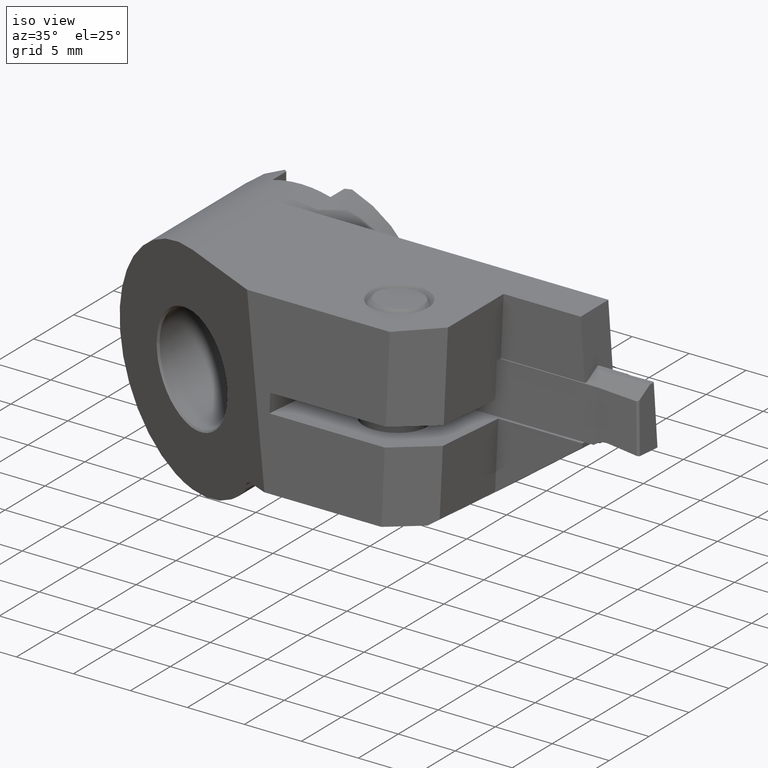
[diagram: clean part render]
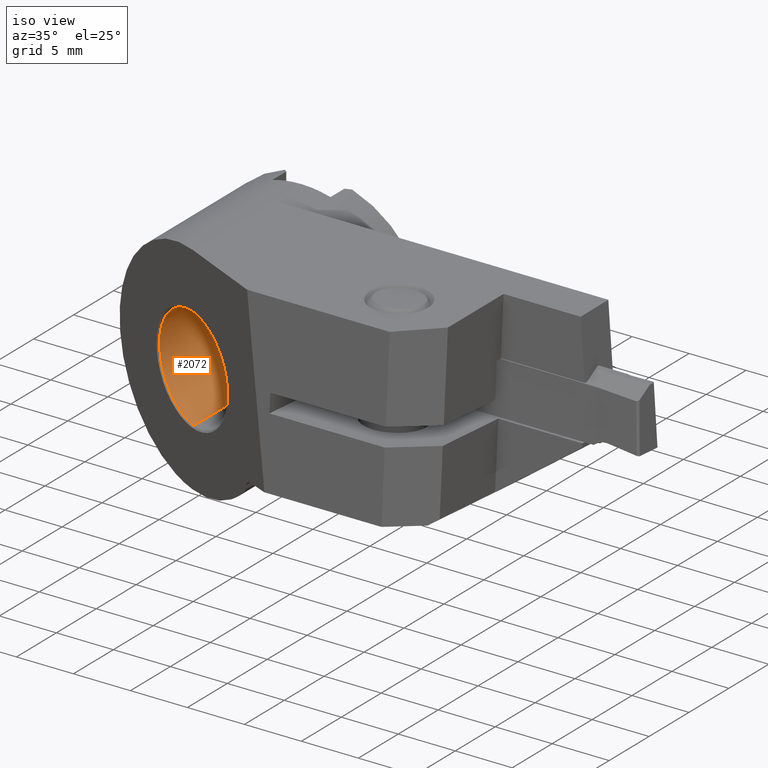
[diagram: same view with one face highlighted and labeled with its STEP entity id]
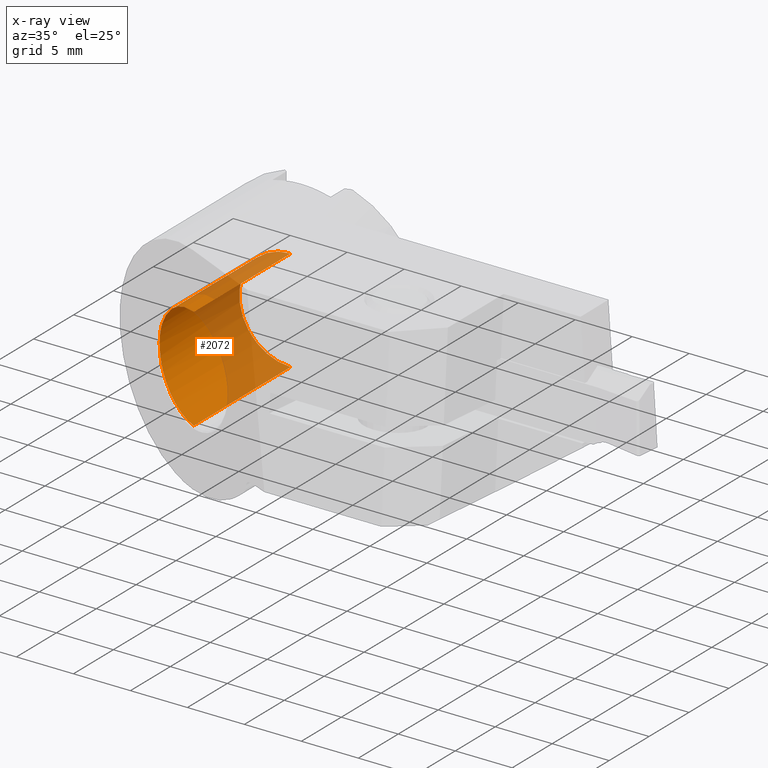
[diagram: x-ray of the same camera — body ghosted, the highlighted face saturated]
A machine part, iso view. The second image highlights one B-rep face of the part: STEP entity #2072.
The next image is the same camera in x-ray: the body ghosted, the highlighted face saturated — about 48% of this face is hidden behind the body in this view.
In plain terms, the highlighted cylindrical surface (partial cylindrical patch) has radius 4.5 mm, axis along (-0, 1, -0).
Its self-contained STEP definition (entity closure, byte-faithful):
#1112=VERTEX_POINT('NONE',#2562);
#1126=EDGE_CURVE('NONE',#1520,#1112,#2579,.T.);
#1158=VERTEX_POINT('NONE',#2614);
#1298=VERTEX_POINT('NONE',#2769);
#1422=EDGE_CURVE('NONE',#2078,#1520,#2905,.T.);
#1520=VERTEX_POINT('NONE',#3009);
#1606=EDGE_CURVE('NONE',#1298,#1158,#3105,.T.);
#1682=EDGE_CURVE('NONE',#2078,#1158,#3188,.T.);
#1702=EDGE_CURVE('NONE',#1112,#1298,#3211,.T.);
#2072=ADVANCED_FACE('NONE',(#3624),#3625,.F.);
#2078=VERTEX_POINT('NONE',#3632);
#2562=CARTESIAN_POINT('',(-4.43337044592901E-015,-15.649491395807,-4.5));
#2579=B_SPLINE_CURVE_WITH_KNOTS('',3,(#4431,#4432,#4433,#4434,#4435,#4436,#4437,#4438,#4439,#4440,#4441,#4442,#4443,#4444,#4445,#4446,#4447,#4448,#4449,#4450,#4451,#4452,#4453,#4454,#4455,#4456,#4457,#4458,#4459,#4460,#4461,#4462),.UNSPECIFIED.,.F.,.F.,(4,2,2,2,1,1,1,2,2,2,2,2,1,1,1,2,2,2,4),(0.0,0.0625000000000023,0.0937500000000034,0.109375000000004,0.117187500000004,0.121093750000004,0.123046875000005,0.124023437500005,0.125000000000005,0.156250000000006,0.171875000000006,0.179687500000007,0.183593750000007,0.185546875000007,0.186523437500007,0.187011718750007,0.187500000000007,0.218750000000003,0.25),.UNSPECIFIED.);
#2614=CARTESIAN_POINT('',(0.0,-3.5,4.5));
#2769=CARTESIAN_POINT('',(5.5107285922007E-016,-3.5,-4.5));
#2905=B_SPLINE_CURVE_WITH_KNOTS('',3,(#5079,#5080,#5081,#5082,#5083,#5084,#5085,#5086,#5087,#5088,#5089,#5090,#5091,#5092,#5093,#5094,#5095,#5096,#5097,#5098,#5099,#5100,#5101,#5102,#5103,#5104,#5105,#5106,#5107,#5108),.UNSPECIFIED.,.F.,.F.,(4,2,2,2,1,1,1,2,2,2,2,1,1,1,2,2,2,4),(0.75,0.781249999999998,0.796874999999997,0.804687499999997,0.808593749999996,0.810546874999996,0.811523437499996,0.812011718749996,0.812499999999996,0.843749999999996,0.859374999999997,0.867187499999997,0.871093749999997,0.873046874999997,0.874023437499997,0.874999999999997,0.937499999999998,1.0),.UNSPECIFIED.);
#3009=CARTESIAN_POINT('',(-4.5,-13.49169278583,-8.46985513409254E-016));
#3105=CIRCLE('',#5496,4.5);
#3188=LINE('',#5637,#5638);
#3211=LINE('',#5666,#5667);
#3624=FACE_OUTER_BOUND('',#6479,.T.);
#3625=CYLINDRICAL_SURFACE('',#6480,4.5);
#3632=CARTESIAN_POINT('',(0.0,-15.649491395807,4.5));
#4431=CARTESIAN_POINT('',(-4.5,-13.49169278583,-8.46985513409254E-016));
#4432=CARTESIAN_POINT('',(-4.5,-13.4917455799461,-0.556871189908013));
#4433=CARTESIAN_POINT('',(-4.39525825786472,-13.5444390253731,-1.1307887187259));
#4434=CARTESIAN_POINT('',(-4.06590445617656,-13.7024401704799,-1.95068334774637));
#4435=CARTESIAN_POINT('',(-3.92767235912046,-13.7682673816766,-2.21696586331955));
#4436=CARTESIAN_POINT('',(-3.6785689245681,-13.8867484427132,-2.59634697548934));
#4437=CARTESIAN_POINT('',(-3.58859727771315,-13.9295321704323,-2.71946117190298));
#4438=CARTESIAN_POINT('',(-3.44355859136445,-13.9986428230714,-2.89789218219288));
#4439=CARTESIAN_POINT('',(-3.36852122540742,-14.0344319146561,-2.98554745933646));
#4440=CARTESIAN_POINT('',(-3.27666668891496,-14.0783449440521,-3.08481407719475));
#4441=CARTESIAN_POINT('',(-3.22967551198142,-14.1008412310535,-3.13366457234193));
#4442=CARTESIAN_POINT('',(-3.20930998331355,-14.1105981624049,-3.15442918730957));
#4443=CARTESIAN_POINT('',(-3.19568281621321,-14.1171284867489,-3.16823379896531));
#4444=CARTESIAN_POINT('',(-3.18776827384923,-14.120922347906,-3.17619275682969));
#4445=CARTESIAN_POINT('',(-2.99677224302644,-14.2124979535021,-3.36718878765248));
#4446=CARTESIAN_POINT('',(-2.7836722676639,-14.3152951967571,-3.5479449452182));
#4447=CARTESIAN_POINT('',(-2.41902892371487,-14.490486045655,-3.79736556355139));
#4448=CARTESIAN_POINT('',(-2.29001872190504,-14.5523821592902,-3.87685016923628));
#4449=CARTESIAN_POINT('',(-2.08532904149071,-14.6504750757469,-3.98841334794441));
#4450=CARTESIAN_POINT('',(-2.01524009025393,-14.6840475055664,-4.02432185983159));
#4451=CARTESIAN_POINT('',(-1.9073533110796,-14.7357183367967,-4.075977564945));
#4452=CARTESIAN_POINT('',(-1.85272194793562,-14.7618817990371,-4.10125350173429));
#4453=CARTESIAN_POINT('',(-1.78779311509402,-14.7929799199117,-4.12971171718411));
#4454=CARTESIAN_POINT('',(-1.7550324141141,-14.8086725007475,-4.14367506559789));
#4455=CARTESIAN_POINT('',(-1.74092882240693,-14.8154286469054,-4.1496015326356));
#4456=CARTESIAN_POINT('',(-1.73151238609924,-14.8199395786487,-4.153539562966));
#4457=CARTESIAN_POINT('',(-1.7249869791316,-14.8230656636348,-4.15625190009133));
#4458=CARTESIAN_POINT('',(-1.53570174564393,-14.9137470475596,-4.23465638178014));
#4459=CARTESIAN_POINT('',(-1.30093277205279,-15.0271427432447,-4.31790671904819));
#4460=CARTESIAN_POINT('',(-0.727033137435556,-15.302152954564,-4.45063673297125));
#4461=CARTESIAN_POINT('',(-0.387134103350192,-15.463856412597,-4.5));
#4462=CARTESIAN_POINT('',(-4.43337044592901E-015,-15.649491395807,-4.5));
#5079=CARTESIAN_POINT('',(0.0,-15.649491395807,4.5));
#5080=CARTESIAN_POINT('',(-0.387134069365769,-15.4638564276398,4.5));
#5081=CARTESIAN_POINT('',(-0.72675790913036,-15.3022863907264,4.45068168411524));
#5082=CARTESIAN_POINT('',(-1.15718879027802,-15.0960287322369,4.3511607912838));
#5083=CARTESIAN_POINT('',(-1.2877218439432,-15.0332924122205,4.31360355803523));
#5084=CARTESIAN_POINT('',(-1.4645713252959,-14.9482122814161,4.25545316434533));
#5085=CARTESIAN_POINT('',(-1.5203696503339,-14.921356296018,4.23575755543626));
#5086=CARTESIAN_POINT('',(-1.59944477946692,-14.8833284052259,4.20625342590755));
#5087=CARTESIAN_POINT('',(-1.63782712044698,-14.8648784816561,4.19151026983619));
#5088=CARTESIAN_POINT('',(-1.68061096164675,-14.8443406090206,4.17442696518692));
#5089=CARTESIAN_POINT('',(-1.70150742510098,-14.8343184322518,4.16592655013204));
#5090=CARTESIAN_POINT('',(-1.7103572522664,-14.8300760906829,4.16229361845888));
#5091=CARTESIAN_POINT('',(-1.71623366734085,-14.8272596134249,4.15987404806078));
#5092=CARTESIAN_POINT('',(-1.71735664452103,-14.8267213216197,4.15941248699624));
#5093=CARTESIAN_POINT('',(-2.02404316072048,-14.6797849365286,4.03237881986588));
#5094=CARTESIAN_POINT('',(-2.29712322643804,-14.5490500742358,3.88071765407113));
#5095=CARTESIAN_POINT('',(-2.66178957335876,-14.3738592253378,3.63133066852548));
#5096=CARTESIAN_POINT('',(-2.77591441674198,-14.3189475164621,3.54452684883822));
#5097=CARTESIAN_POINT('',(-2.9362217856526,-14.2418078142838,3.41078355854806));
#5098=CARTESIAN_POINT('',(-3.01365967687577,-14.2045449284785,3.34302436075653));
#5099=CARTESIAN_POINT('',(-3.09934907000311,-14.1633587509524,3.26281617787197));
#5100=CARTESIAN_POINT('',(-3.14104485304174,-14.143337459501,3.22247016225604));
#5101=CARTESIAN_POINT('',(-3.15866990851081,-14.1348794340172,3.20513214474481));
#5102=CARTESIAN_POINT('',(-3.17036578498796,-14.1292679788047,3.19356359660894));
#5103=CARTESIAN_POINT('',(-3.17511478947387,-14.1269898814092,3.18884624120506));
#5104=CARTESIAN_POINT('',(-3.6213869707376,-13.9129763965374,2.74257405994133));
#5105=CARTESIAN_POINT('',(-3.95625959793389,-13.7549488633086,2.22373295912117));
#5106=CARTESIAN_POINT('',(-4.39532930547386,-13.5442806698328,1.13051252809001));
#5107=CARTESIAN_POINT('',(-4.5,-13.4916400095859,0.556682676477839));
#5108=CARTESIAN_POINT('',(-4.5,-13.49169278583,-8.46985513409254E-016));
#5496=AXIS2_PLACEMENT_3D('',#7541,#7542,#7543);
#5637=CARTESIAN_POINT('',(0.0,0.0,4.5));
#5638=VECTOR('',#7629,1000.0);
#5666=CARTESIAN_POINT('',(5.5107285922007E-016,0.0,-4.5));
#5667=VECTOR('',#7661,1000.0);
#6479=EDGE_LOOP('',(#8119,#8120,#8121,#8122,#8123));
#6480=AXIS2_PLACEMENT_3D('',#8124,#8125,#8126);
#7541=CARTESIAN_POINT('',(0.0,-3.5,0.0));
#7542=DIRECTION('',(-0.0,1.0,0.0));
#7543=DIRECTION('',(0.0,0.0,1.0));
#7629=DIRECTION('',(0.0,1.0,0.0));
#7661=DIRECTION('',(0.0,1.0,0.0));
#8119=ORIENTED_EDGE('',*,*,#1422,.T.);
#8120=ORIENTED_EDGE('',*,*,#1126,.T.);
#8121=ORIENTED_EDGE('',*,*,#1702,.T.);
#8122=ORIENTED_EDGE('',*,*,#1606,.T.);
#8123=ORIENTED_EDGE('',*,*,#1682,.F.);
#8124=CARTESIAN_POINT('',(0.0,0.0,0.0));
#8125=DIRECTION('',(-0.0,1.0,-0.0));
#8126=DIRECTION('',(0.0,0.0,1.0));